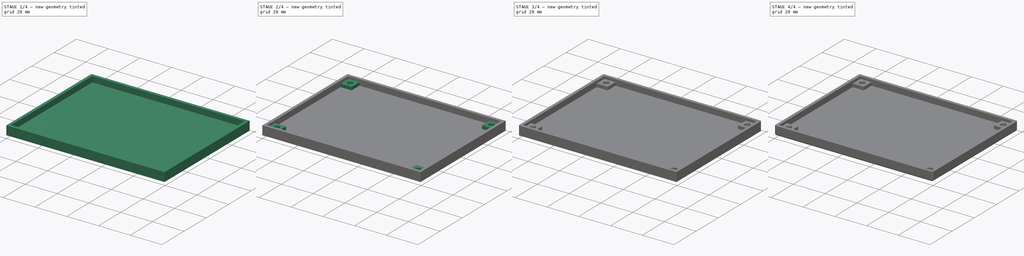
[diagram: build sequence overview — one tinted view per stage of 4, left to right]
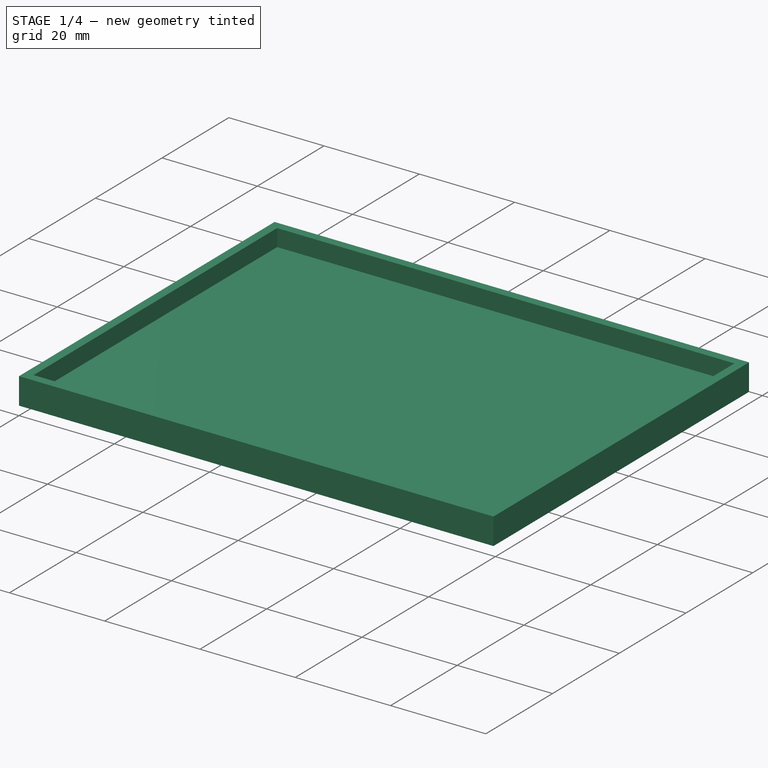
[diagram: stage 1 of 4 — iso view after this stage's code; geometry added in this stage tinted green]
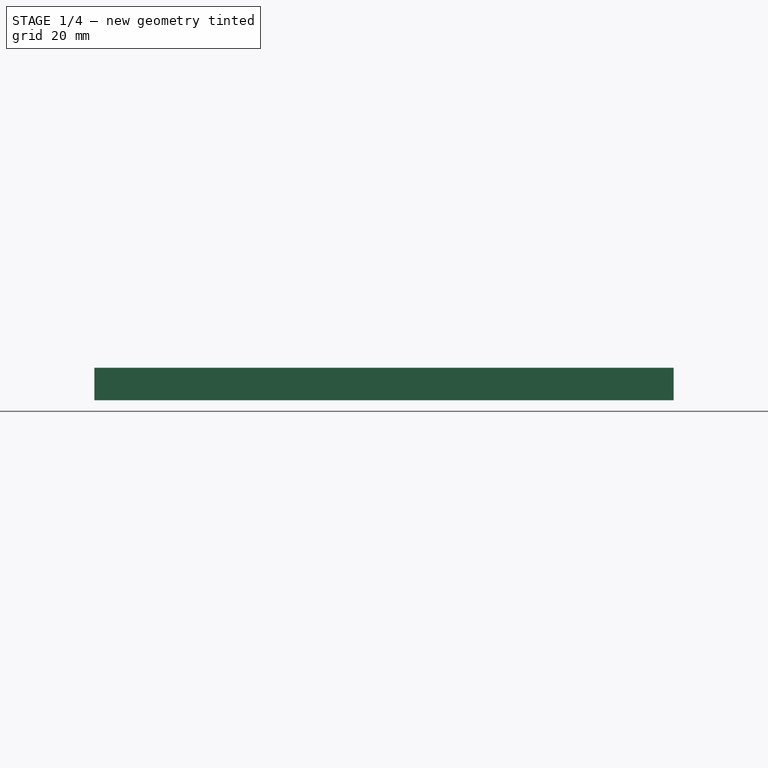
[diagram: stage 1 of 4 — front view after this stage's code; geometry added in this stage tinted green]
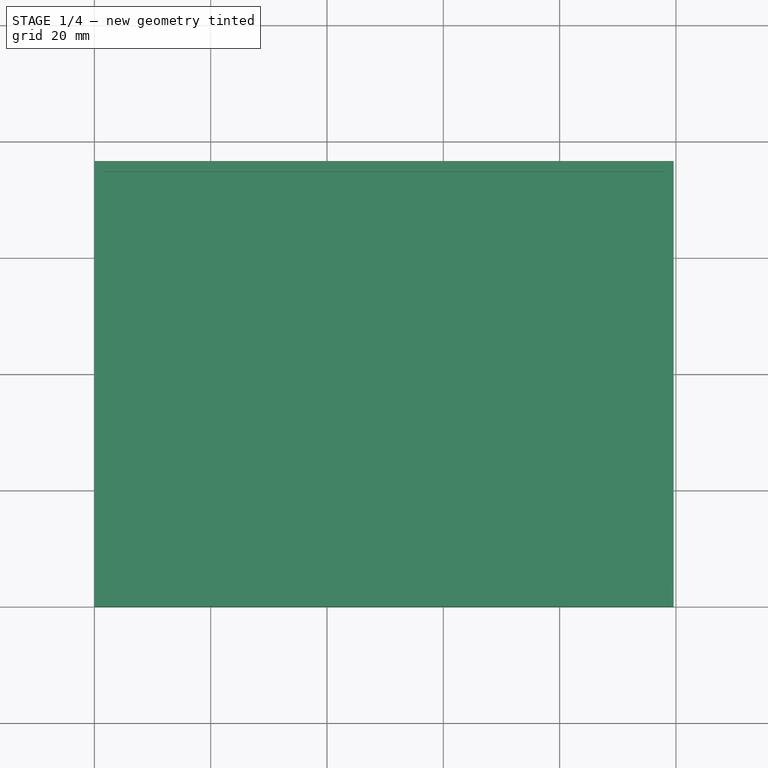
[diagram: stage 1 of 4 — top view after this stage's code; geometry added in this stage tinted green]
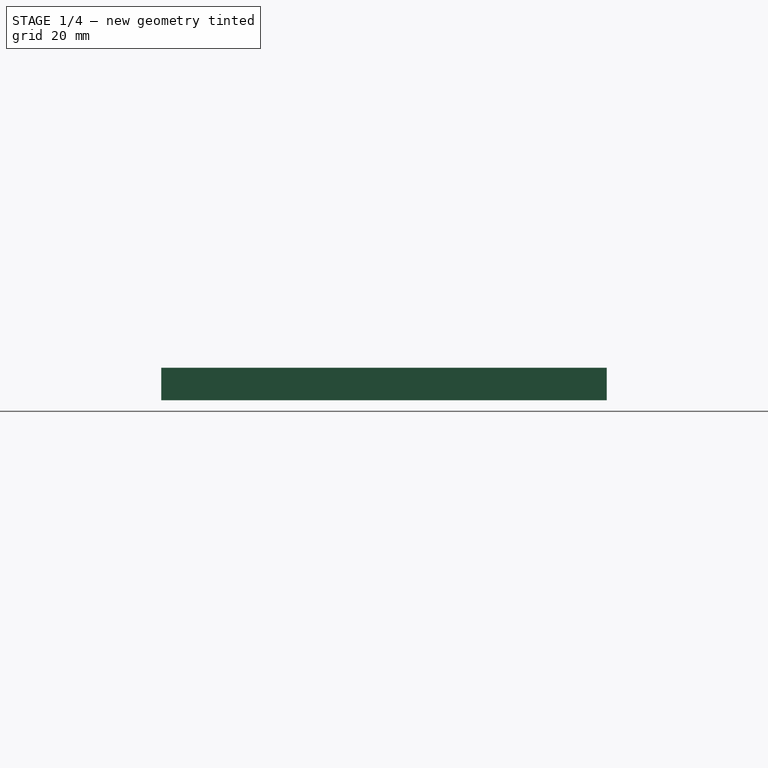
[diagram: stage 1 of 4 — right view after this stage's code; geometry added in this stage tinted green]
FCSTD DOCUMENT  (FreeCAD 1.0R39109 (Git))
Label: Akizuki_B_Board_r3
License: All rights reserved
LicenseURL: http://en.wikipedia.org/wiki/All_rights_reserved
objects: Sketcher::SketchObject×5, PartDesign::Fillet×5, PartDesign::Pad×3, PartDesign::Pocket×2, PartDesign::Body×1
note: 41 computed .brp shape members not serialized (recipe doc carries the construction recipe); baked Part::Feature solids carry a one-line shape summary decoded from their .brp

FEATURE [Sketcher::SketchObject] Sketch
  ArcFitTolerance = 0
  AttachmentSupport = -> [XY_Plane]
  FullyConstrained = true
  MakeInternals = false
  MapMode = 5
  sketch-geometry (4):
    g0: LineSegment StartX=0 StartY=0 StartZ=0 EndX=99.6 EndY=0 EndZ=0
    g1: LineSegment StartX=99.6 StartY=0 StartZ=0 EndX=99.6 EndY=76.6 EndZ=0
    g2: LineSegment StartX=99.6 StartY=76.6 StartZ=0 EndX=0 EndY=76.6 EndZ=0
    g3: LineSegment StartX=0 StartY=76.6 StartZ=0 EndX=0 EndY=0 EndZ=0
  constraints (11):
    c: Coincident(g0,g1)
    c: Coincident(g1,g2)
    c: Coincident(g2,g3)
    c: Coincident(g3,g0)
    c: Horizontal(g0)
    c: Horizontal(g2)
    c: Vertical(g1)
    c: Vertical(g3)
    c: Coincident(g0,g-1)
    c: DistanceY(g3,g3) = 76.6
    c: DistanceX(g2,g2) = 99.6
FEATURE [PartDesign::Pad] Pad
  AllowMultiFace = false
  Direction = (0,0,1)
  Length = 2
  Length2 = 100
  Profile = -> Sketch
  Suppressed = false
  Type = 0
FEATURE [Sketcher::SketchObject] Sketch001
  ArcFitTolerance = 0
  AttachmentSupport = -> [Pad]
  FullyConstrained = true
  MakeInternals = false
  MapMode = 5
  Placement = pos=(0,0,2) rot=(0,0,1;0rad)
  sketch-geometry (8):
    g0: LineSegment StartX=0 StartY=0 StartZ=0 EndX=0 EndY=76.6 EndZ=0
    g1: LineSegment StartX=99.6 StartY=0 StartZ=0 EndX=99.6 EndY=76.6 EndZ=0
    g2: LineSegment StartX=1.8 StartY=1.8 StartZ=0 EndX=97.8 EndY=1.8 EndZ=0
    g3: LineSegment StartX=1.8 StartY=74.8 StartZ=0 EndX=97.8 EndY=74.8 EndZ=0
    g4: LineSegment StartX=1.8 StartY=74.8 StartZ=0 EndX=1.8 EndY=1.8 EndZ=0
    g5: LineSegment StartX=97.8 StartY=74.8 StartZ=0 EndX=97.8 EndY=1.8 EndZ=0
    g6: LineSegment StartX=0 StartY=76.6 StartZ=0 EndX=99.6 EndY=76.6 EndZ=0
    g7: LineSegment StartX=0 StartY=0 StartZ=0 EndX=99.6 EndY=0 EndZ=0
  constraints (23):
    c: Vertical(g1)
    c: Vertical(g0)
    c: Horizontal(g2)
    c: Horizontal(g3)
    c: Coincident(g4,g3)
    c: Coincident(g4,g2)
    c: Vertical(g4)
    c: Coincident(g5,g3)
    c: Coincident(g5,g2)
    c: Vertical(g5)
    c: Coincident(g6,g0)
    c: Coincident(g6,g1)
    c: Horizontal(g6)
    c: Distance(g3,g6) = 1.8
    c: Coincident(g7,g0)
    c: Coincident(g7,g1)
    c: Distance(g7,g2) = 1.8
    c: Distance(g5,g1) = 1.8
    c: Distance(g0,g4) = 1.8
    c: Coincident(g0,g-1)
    c: Distance(g2,g3) = 73
    c: Distance(g5,g4) = 96
    c: Horizontal(g7)
FEATURE [PartDesign::Pad] Pad001
  AllowMultiFace = false
  BaseFeature = -> Pad
  Direction = (0,0,1)
  Length = 3.6
  Length2 = 100
  Profile = -> Sketch001
  Suppressed = false
  Type = 0
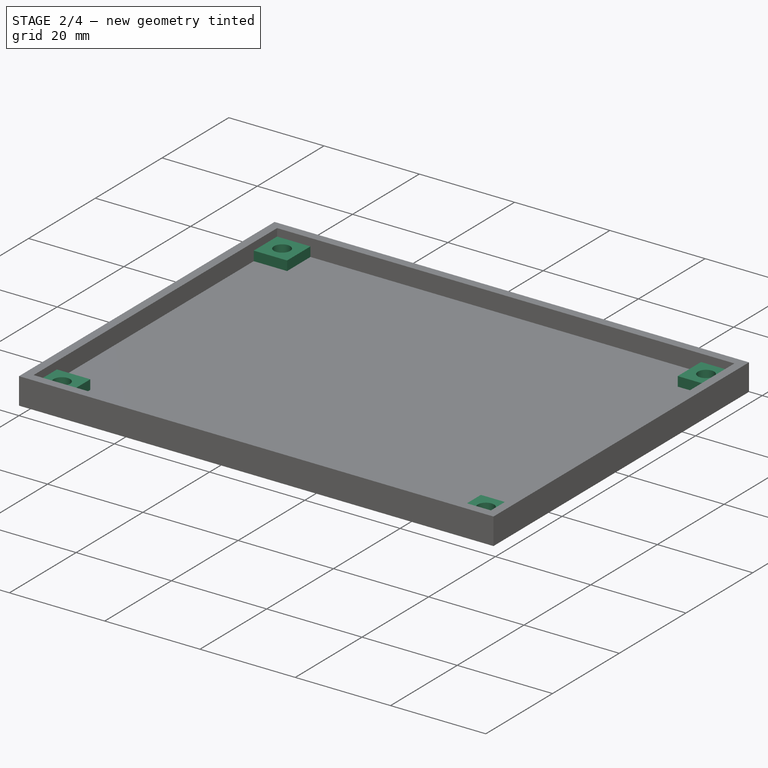
[diagram: stage 2 of 4 — iso view after this stage's code; geometry added in this stage tinted green]
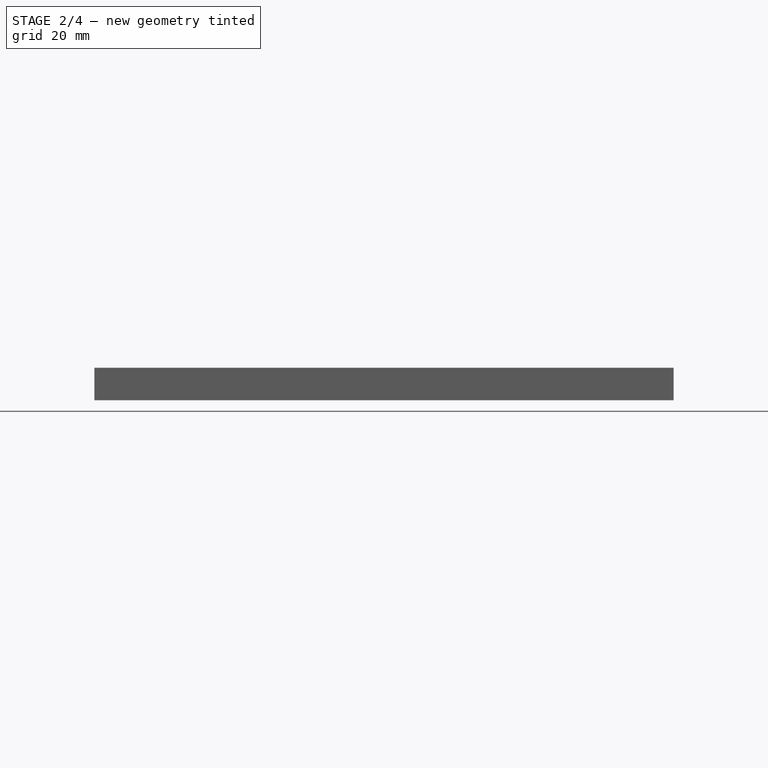
[diagram: stage 2 of 4 — front view after this stage's code; geometry added in this stage tinted green]
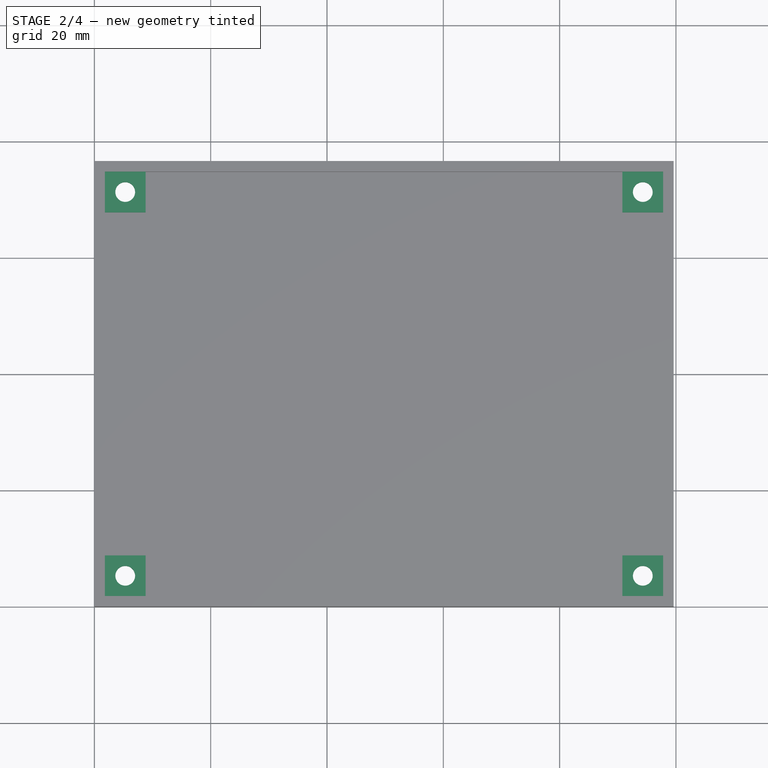
[diagram: stage 2 of 4 — top view after this stage's code; geometry added in this stage tinted green]
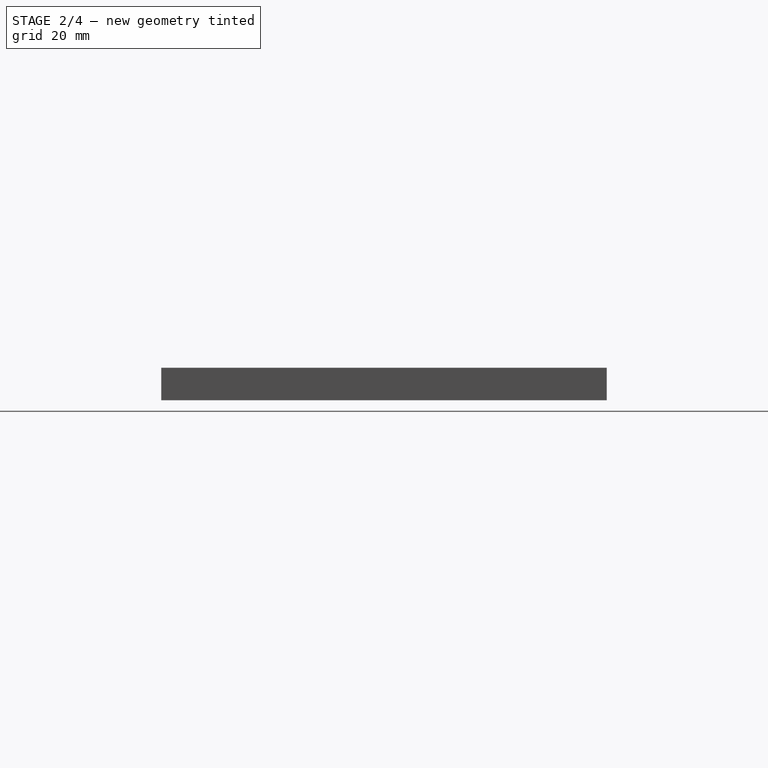
[diagram: stage 2 of 4 — right view after this stage's code; geometry added in this stage tinted green]
FEATURE [Sketcher::SketchObject] Sketch003
  ArcFitTolerance = 0
  AttachmentSupport = -> [Pad001]
  FullyConstrained = true
  MakeInternals = false
  MapMode = 5
  Placement = pos=(0,0,2) rot=(0,0,1;0rad)
  sketch-geometry (16):
    g0: LineSegment StartX=1.8 StartY=1.8 StartZ=0 EndX=8.8 EndY=1.8 EndZ=0
    g1: LineSegment StartX=8.8 StartY=1.8 StartZ=0 EndX=8.8 EndY=8.8 EndZ=0
    g2: LineSegment StartX=8.8 StartY=8.8 StartZ=0 EndX=1.8 EndY=8.8 EndZ=0
    g3: LineSegment StartX=1.8 StartY=8.8 StartZ=0 EndX=1.8 EndY=1.8 EndZ=0
    g4: LineSegment StartX=1.8 StartY=67.8 StartZ=0 EndX=8.8 EndY=67.8 EndZ=0
    g5: LineSegment StartX=8.8 StartY=67.8 StartZ=0 EndX=8.8 EndY=74.8 EndZ=0
    g6: LineSegment StartX=8.8 StartY=74.8 StartZ=0 EndX=1.8 EndY=74.8 EndZ=0
    g7: LineSegment StartX=1.8 StartY=74.8 StartZ=0 EndX=1.8 EndY=67.8 EndZ=0
    g8: LineSegment StartX=90.8 StartY=67.8 StartZ=0 EndX=97.8 EndY=67.8 EndZ=0
    g9: LineSegment StartX=97.8 StartY=67.8 StartZ=0 EndX=97.8 EndY=74.8 EndZ=0
    g10: LineSegment StartX=97.8 StartY=74.8 StartZ=0 EndX=90.8 EndY=74.8 EndZ=0
    g11: LineSegment StartX=90.8 StartY=74.8 StartZ=0 EndX=90.8 EndY=67.8 EndZ=0
    g12: LineSegment StartX=90.8 StartY=1.8 StartZ=0 EndX=97.8 EndY=1.8 EndZ=0
    g13: LineSegment StartX=97.8 StartY=1.8 StartZ=0 EndX=97.8 EndY=8.8 EndZ=0
    g14: LineSegment StartX=97.8 StartY=8.8 StartZ=0 EndX=90.8 EndY=8.8 EndZ=0
    g15: LineSegment StartX=90.8 StartY=8.8 StartZ=0 EndX=90.8 EndY=1.8 EndZ=0
  constraints (48):
    c: Coincident(g0,g1)
    c: Coincident(g1,g2)
    c: Coincident(g2,g3)
    c: Coincident(g3,g0)
    c: Horizontal(g0)
    c: Horizontal(g2)
    c: Vertical(g1)
    c: Vertical(g3)
    c: Coincident(g4,g5)
    c: Coincident(g5,g6)
    c: Coincident(g6,g7)
    c: Coincident(g7,g4)
    c: Horizontal(g4)
    c: Horizontal(g6)
    c: Vertical(g5)
    c: Vertical(g7)
    c: Coincident(g8,g9)
    c: Coincident(g9,g10)
    c: Coincident(g10,g11)
    c: Coincident(g11,g8)
    c: Horizontal(g8)
    c: Horizontal(g10)
    c: Vertical(g9)
    c: Vertical(g11)
    c: Coincident(g12,g13)
    c: Coincident(g13,g14)
    c: Coincident(g14,g15)
    c: Coincident(g15,g12)
    c: Horizontal(g12)
    c: Horizontal(g14)
    c: Vertical(g13)
    c: Vertical(g15)
    c: DistanceY(g-1,g0) = 1.8
    c: DistanceY(g3,g3) = 7
    c: DistanceX(g0,g0) = 7
    c: DistanceX(g6,g6) = 7
    c: Distance(g7,g7) = 7
    c: Distance(g12,g12) = 7
    c: Distance(g15,g15) = 7
    c: Distance(g11,g11) = 7
    c: Distance(g8,g8) = 7
    c: Distance(g-2,g3) = 1.8
    c: Distance(g-1,g12) = 1.8
    c: Distance(g12,g10) = 73
    c: Distance(g9,g7) = 96
    c: Distance(g4,g-2) = 1.8
    c: Distance(g13,g3) = 96
    c: Distance(g0,g6) = 73
FEATURE [PartDesign::Pad] Pad003
  AllowMultiFace = false
  BaseFeature = -> Pad001
  Direction = (0,0,1)
  Length = 2
  Length2 = 100
  Profile = -> Sketch003
  Suppressed = false
  Type = 0
FEATURE [Sketcher::SketchObject] Sketch004
  ArcFitTolerance = 0
  AttachmentSupport = -> [Pad003]
  FullyConstrained = true
  MakeInternals = false
  MapMode = 5
  Placement = pos=(0,0,0) rot=(1,0,0;3.14159rad)
  sketch-geometry (4):
    g0: Circle CenterX=5.3 CenterY=-5.3 CenterZ=0 NormalX=0 NormalY=0 NormalZ=1 AngleXU=0 Radius=3.3
    g1: Circle CenterX=94.3 CenterY=-5.3 CenterZ=0 NormalX=0 NormalY=0 NormalZ=1 AngleXU=0 Radius=3.3
    g2: Circle CenterX=5.3 CenterY=-71.3 CenterZ=0 NormalX=0 NormalY=0 NormalZ=1 AngleXU=0 Radius=3.3
    g3: Circle CenterX=94.3 CenterY=-71.3 CenterZ=0 NormalX=0 NormalY=0 NormalZ=1 AngleXU=0 Radius=3.3
  constraints (12):
    c: DistanceX(g-1,g0) = 5.3
    c: Diameter(g0) = 6.6
    c: Diameter(g1) = 6.6
    c: DistanceX(g-1,g2) = 5.3
    c: Diameter(g2) = 6.6
    c: Diameter(g3) = 6.6
    c: DistanceY(g1,g-1) = 5.3
    c: DistanceY(g0,g-1) = 5.3
    c: DistanceY(g2,g0) = 66
    c: DistanceY(g3,g1) = 66
    c: DistanceX(g0,g1) = 89
    c: DistanceX(g2,g3) = 89
FEATURE [PartDesign::Pocket] Pocket
  AllowMultiFace = false
  BaseFeature = -> Pad003
  Direction = (0,0,1)
  Length = 2
  Length2 = 100
  Profile = -> Sketch004
  Suppressed = false
  Type = 0
FEATURE [Sketcher::SketchObject] Sketch005
  ArcFitTolerance = 0
  AttachmentSupport = -> [Pocket]
  FullyConstrained = true
  MakeInternals = false
  MapMode = 5
  Placement = pos=(0,0,0) rot=(1,0,0;3.14159rad)
  sketch-geometry (4):
    g0: Circle CenterX=5.3 CenterY=-5.3 CenterZ=0 NormalX=0 NormalY=0 NormalZ=1 AngleXU=0 Radius=1.7
    g1: Circle CenterX=5.3 CenterY=-71.3 CenterZ=0 NormalX=0 NormalY=0 NormalZ=1 AngleXU=0 Radius=1.7
    g2: Circle CenterX=94.3 CenterY=-71.3 CenterZ=0 NormalX=0 NormalY=0 NormalZ=1 AngleXU=0 Radius=1.7
    g3: Circle CenterX=94.3 CenterY=-5.3 CenterZ=0 NormalX=0 NormalY=0 NormalZ=1 AngleXU=0 Radius=1.7
  constraints (12):
    c: DistanceX(g-1,g0) = 5.3
    c: Diameter(g0) = 3.4
    c: DistanceY(g3,g-1) = 5.3
    c: Diameter(g3) = 3.4
    c: Diameter(g1) = 3.4
    c: Diameter(g2) = 3.4
    c: DistanceX(g-1,g1) = 5.3
    c: DistanceY(g0,g-1) = 5.3
    c: DistanceX(g0,g3) = 89
    c: DistanceY(g1,g0) = 66
    c: DistanceY(g2,g3) = 66
    c: DistanceX(g1,g2) = 89
FEATURE [PartDesign::Pocket] Pocket001
  AllowMultiFace = false
  BaseFeature = -> Pocket
  Direction = (0,0,1)
  Length = 5
  Length2 = 100
  Profile = -> Sketch005
  Suppressed = false
  Type = 0
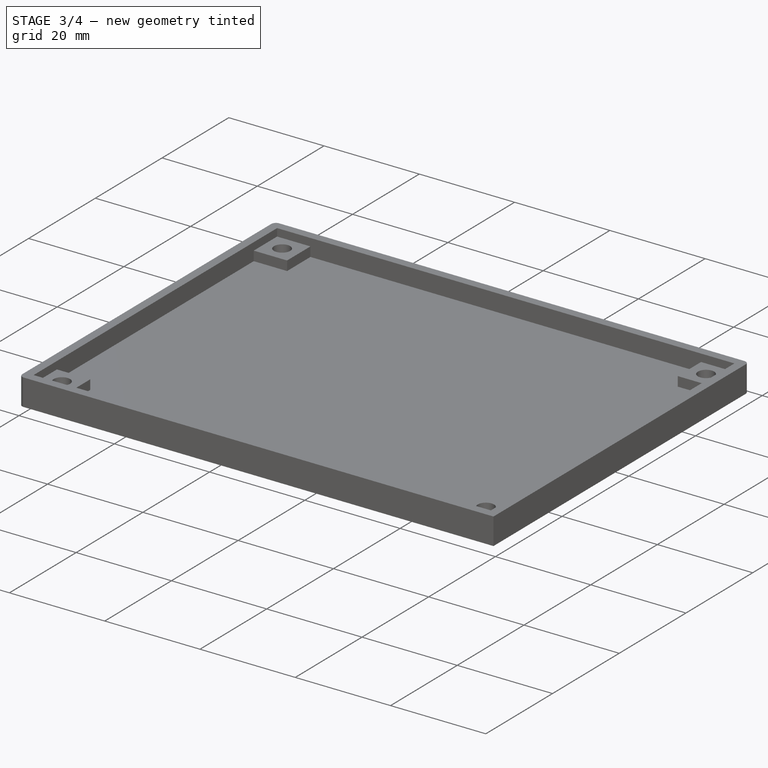
[diagram: stage 3 of 4 — iso view after this stage's code; geometry added in this stage tinted green]
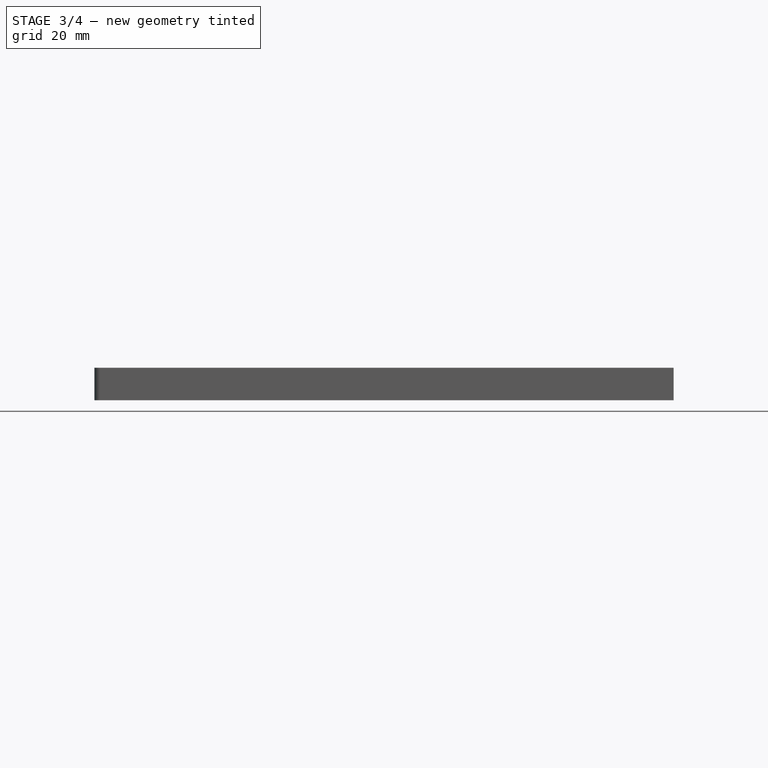
[diagram: stage 3 of 4 — front view after this stage's code; geometry added in this stage tinted green]
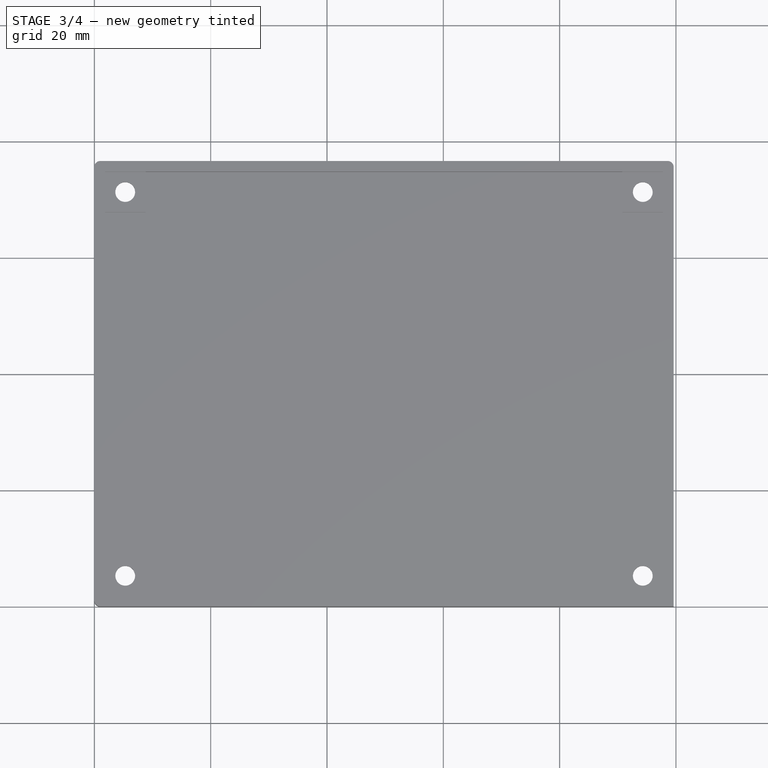
[diagram: stage 3 of 4 — top view after this stage's code; geometry added in this stage tinted green]
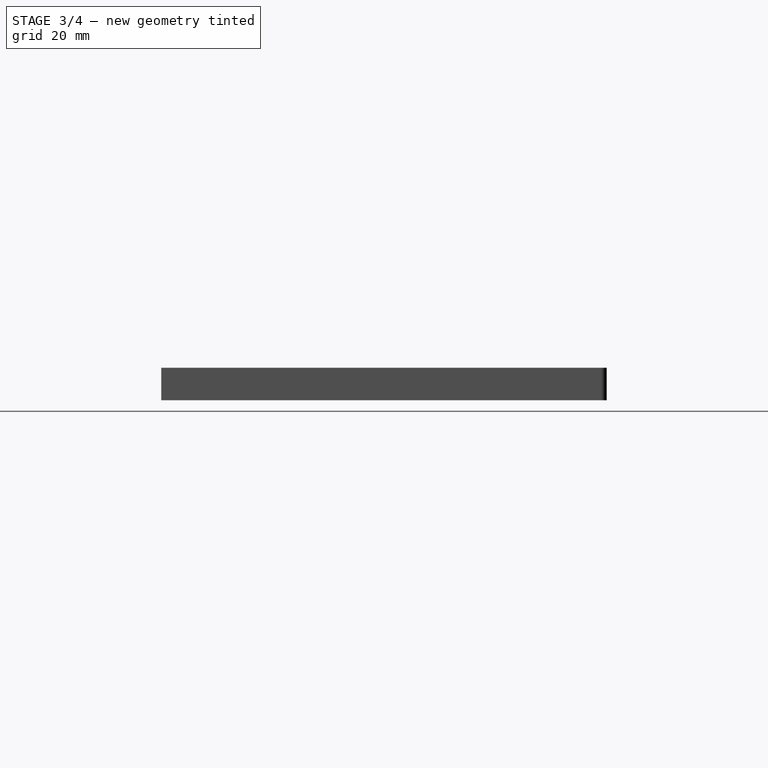
[diagram: stage 3 of 4 — right view after this stage's code; geometry added in this stage tinted green]
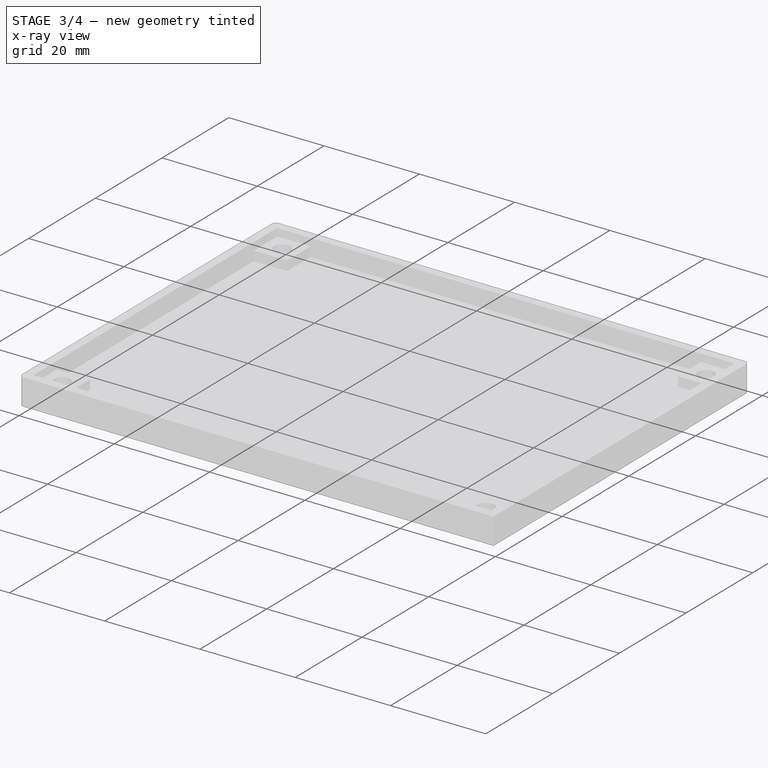
[diagram: stage 3 of 4 — x-ray composite at the iso view; earlier geometry ghosted, this stage's added geometry solid]
FEATURE [PartDesign::Fillet] Fillet
  Base = -> Pocket001 [Edge20]
  BaseFeature = -> Pocket001
  Radius = 1
  Refine = true
  SupportTransform = false
  Suppressed = false
  UseAllEdges = false
FEATURE [PartDesign::Fillet] Fillet001
  Base = -> Fillet [Edge83]
  BaseFeature = -> Fillet
  Radius = 1
  Refine = true
  SupportTransform = false
  Suppressed = false
  UseAllEdges = false
FEATURE [PartDesign::Fillet] Fillet002
  Base = -> Fillet001 [Edge21]
  BaseFeature = -> Fillet001
  Radius = 1
  Refine = true
  SupportTransform = false
  Suppressed = false
  UseAllEdges = false
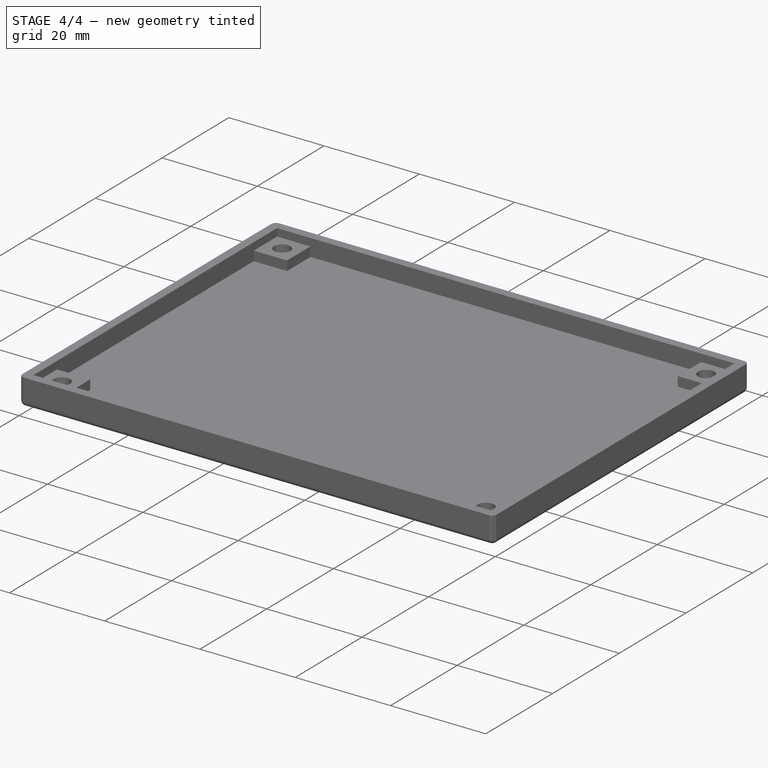
[diagram: stage 4 of 4 — iso view after this stage's code; geometry added in this stage tinted green]
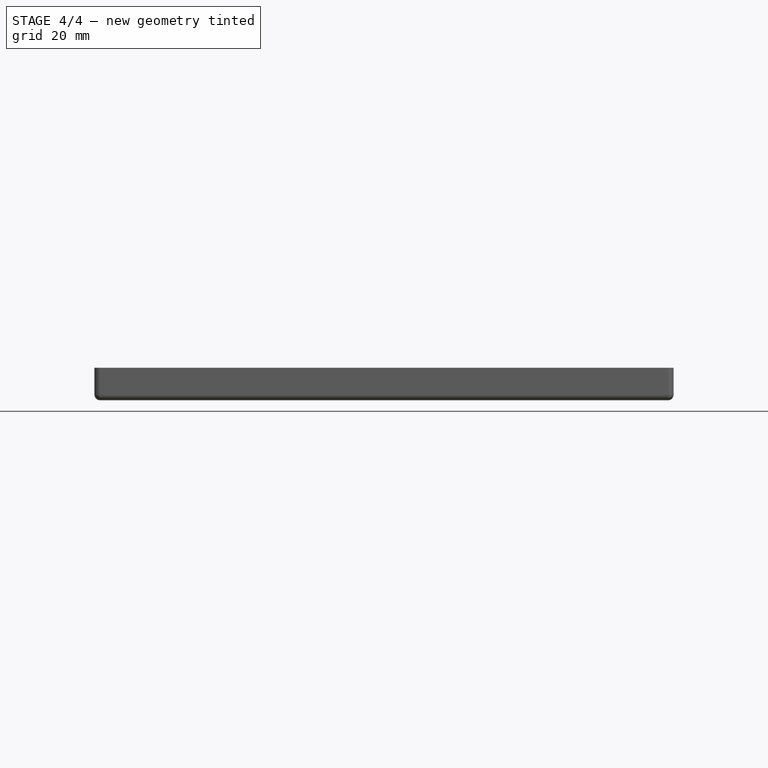
[diagram: stage 4 of 4 — front view after this stage's code; geometry added in this stage tinted green]
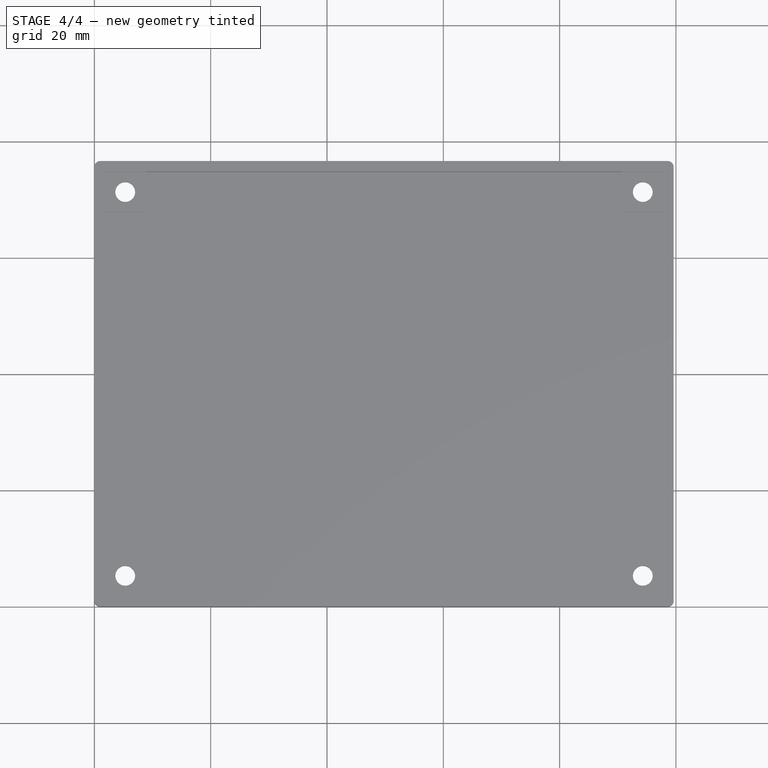
[diagram: stage 4 of 4 — top view after this stage's code; geometry added in this stage tinted green]
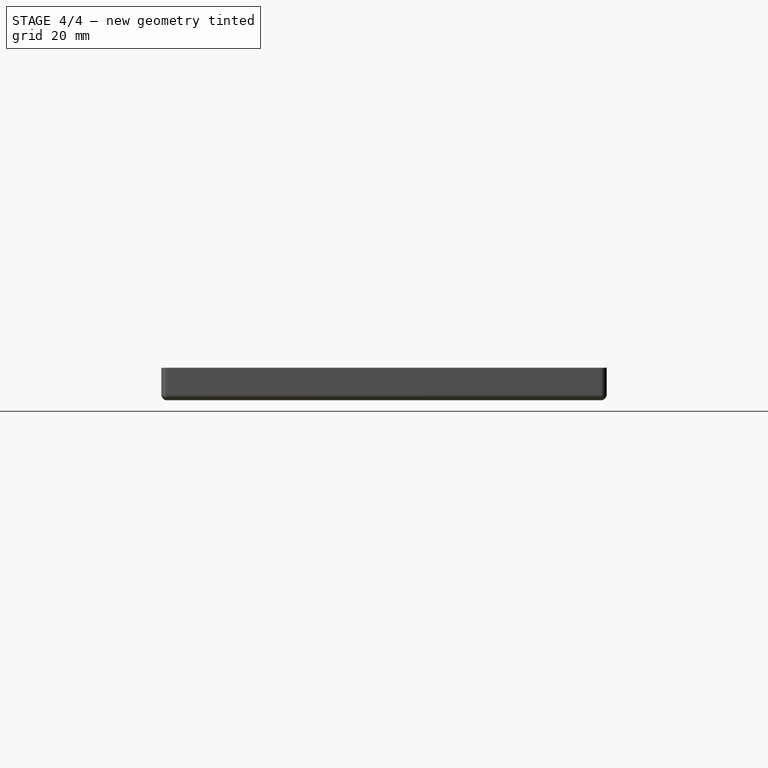
[diagram: stage 4 of 4 — right view after this stage's code; geometry added in this stage tinted green]
FEATURE [PartDesign::Fillet] Fillet003
  Base = -> Fillet002 [Edge20]
  BaseFeature = -> Fillet002
  Radius = 1
  Refine = true
  SupportTransform = false
  Suppressed = false
  UseAllEdges = false
FEATURE [PartDesign::Fillet] Fillet004
  Base = -> Fillet003 [Edge20]
  BaseFeature = -> Fillet003
  Radius = 1
  Refine = true
  SupportTransform = false
  Suppressed = false
  UseAllEdges = false
FEATURE [PartDesign::Body] Body
  AllowCompound = false
  Group = -> [Sketch,Pad,Sketch001,Pad001,Sketch003,Pad003,Sketch004,Pocket,Sketch005,Pocket001,Fillet,Fillet001,Fillet002,Fillet003,Fillet004]
  Origin = -> Origin
  Tip = -> Fillet004
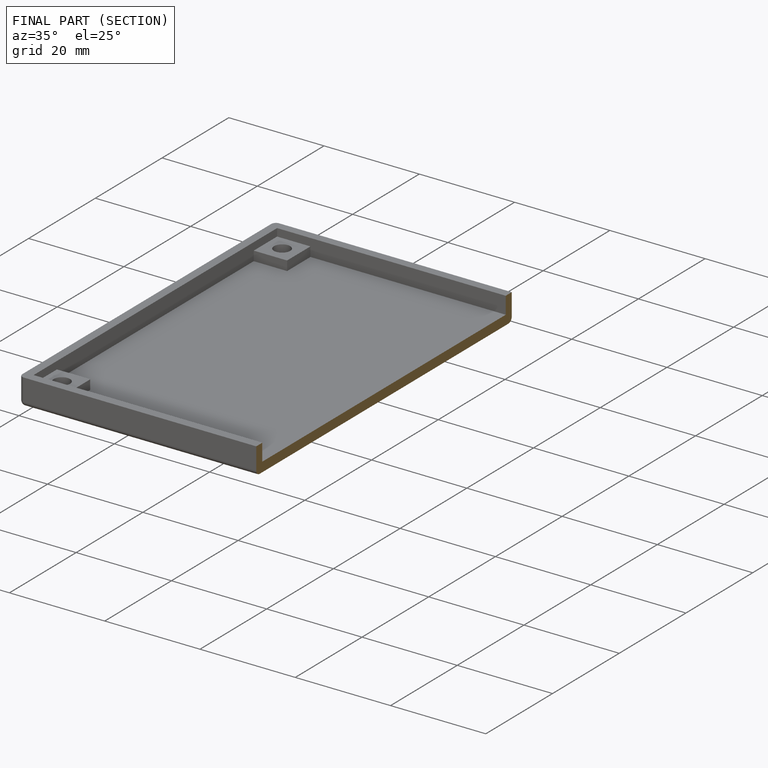
[diagram: finished part — half-section view (interior)]
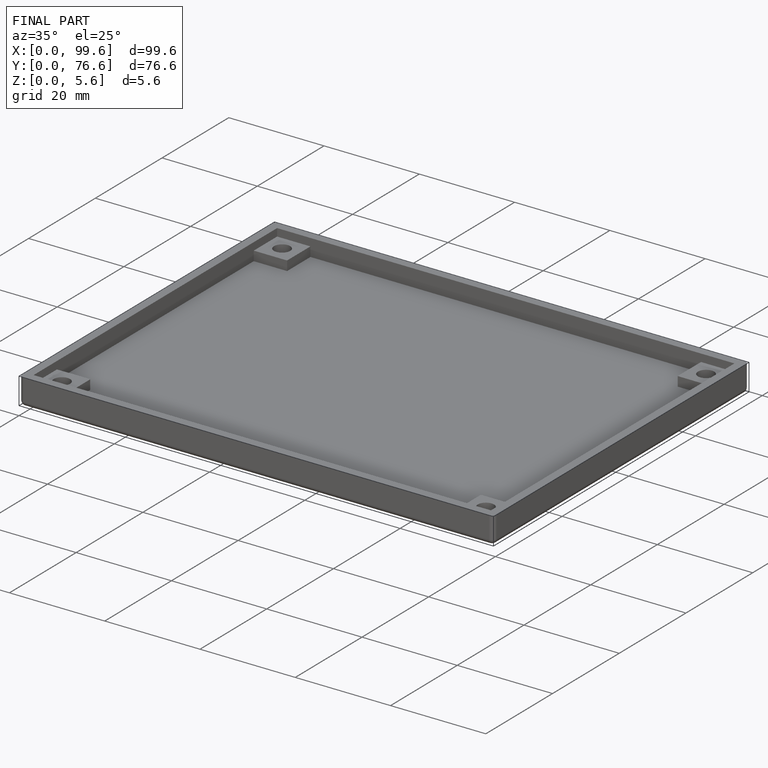
[diagram: finished part — iso view with bounding-box wireframe]
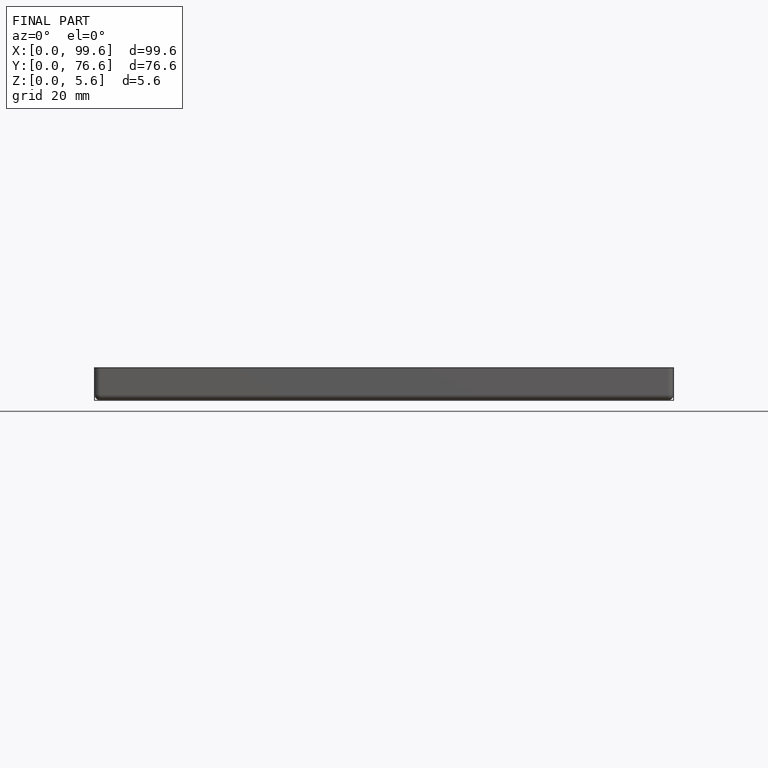
[diagram: finished part — front view with bounding-box wireframe]
